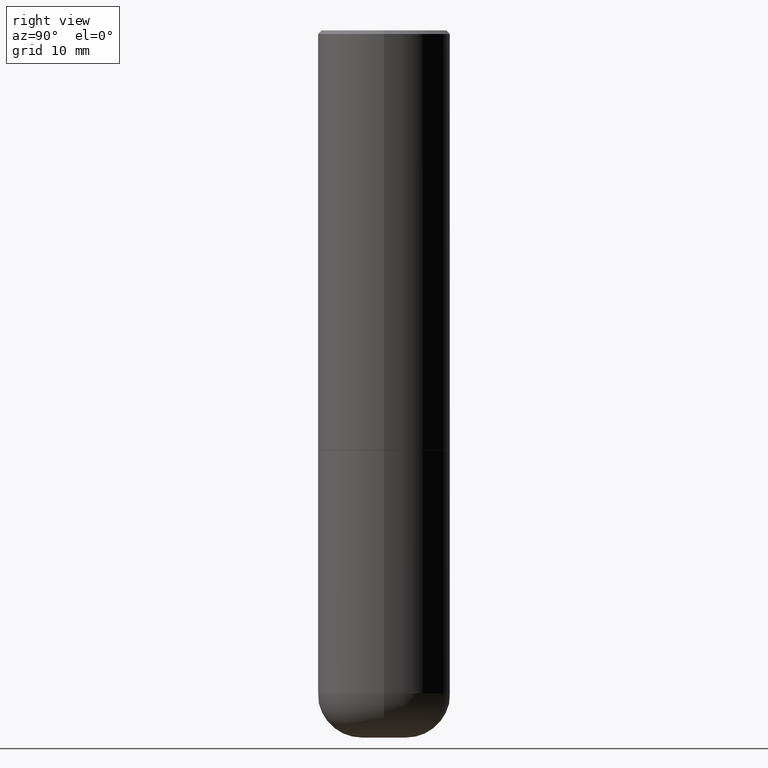
[diagram: clean part render]
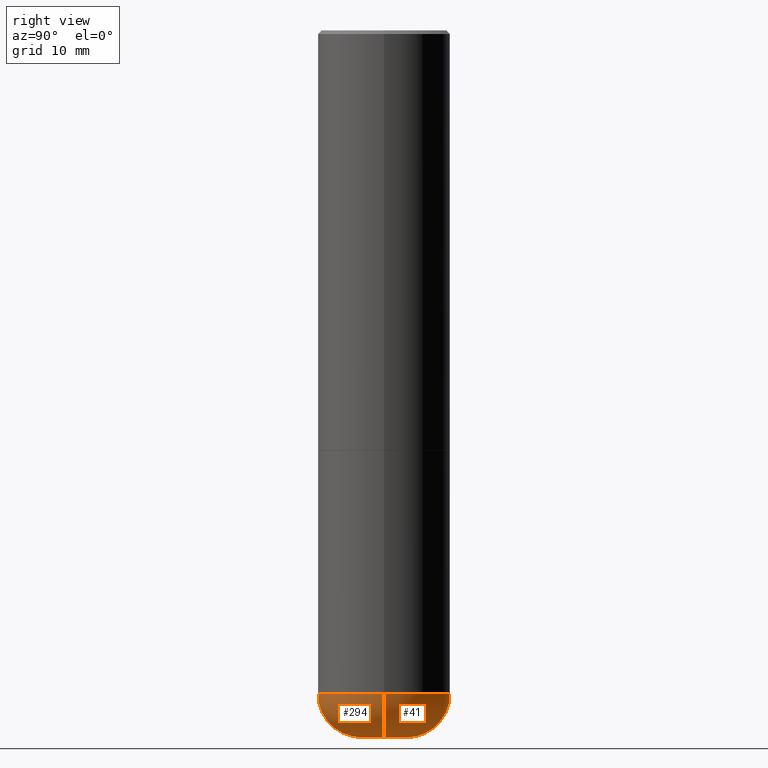
[diagram: same view with one multi-face feature highlighted, each face labeled with its STEP entity id]
A machine part, right view. The highlighted faces form ONE feature: a constant-radius fillet chain: 2 tangent blend faces with common blend radius 6.35 mm. The faces share edges in the B-rep.
Their STEP definitions:
[1] entity #294 (Torus):
#40 = VERTEX_POINT ( 'NONE', #445 ) ;
#42 = DIRECTION ( 'NONE',  ( -2.445468806185136597E-29, 3.491481338843145583E-15, 1.000000000000000000 ) ) ;
#45 = AXIS2_PLACEMENT_3D ( 'NONE', #474, #42, #195 ) ;
#53 = TOROIDAL_SURFACE ( 'NONE', #300, 0.1250000000000003053, 0.2500000000000001110 ) ;
#61 = DIRECTION ( 'NONE',  ( -1.000000000000000000, 7.105427357601001859E-15, 0.000000000000000000 ) ) ;
#95 = CARTESIAN_POINT ( 'NONE',  ( 0.1250000000000003053, -1.396595859160030030E-14, -3.750009519233956645 ) ) ;
#99 = FACE_OUTER_BOUND ( 'NONE', #429, .T. ) ;
#118 = ORIENTED_EDGE ( 'NONE', *, *, #302, .F. ) ;
#132 = CARTESIAN_POINT ( 'NONE',  ( 0.3749999999999999445, -1.571169926102186224E-14, -3.750009519233956645 ) ) ;
#141 = ORIENTED_EDGE ( 'NONE', *, *, #179, .T. ) ;
#174 = DIRECTION ( 'NONE',  ( 7.105427357601001859E-15, 1.000000000000000000, -3.491481338843145583E-15 ) ) ;
#179 = EDGE_CURVE ( 'NONE', #262, #309, #307, .T. ) ;
#195 = DIRECTION ( 'NONE',  ( 1.000000000000000000, -6.982962677686263555E-15, 0.000000000000000000 ) ) ;
#198 = CIRCLE ( 'NONE', #444, 0.2500000000000000555 ) ;
#208 = EDGE_CURVE ( 'NONE', #309, #375, #198, .T. ) ;
#216 = CARTESIAN_POINT ( 'NONE',  ( 9.781875224740545266E-29, -1.396592535537258075E-14, -3.999999999999999556 ) ) ;
#243 = DIRECTION ( 'NONE',  ( -2.445468806185136597E-29, 3.491481338843145583E-15, 1.000000000000000000 ) ) ;
#262 = VERTEX_POINT ( 'NONE', #280 ) ;
#265 = CIRCLE ( 'NONE', #45, 0.3749999999999999445 ) ;
#280 = CARTESIAN_POINT ( 'NONE',  ( -0.1228183661254082099, -1.176090068723919405E-14, -3.999999999999999556 ) ) ;
#290 = AXIS2_PLACEMENT_3D ( 'NONE', #216, #336, #488 ) ;
#294 = ADVANCED_FACE ( 'NONE', ( #99 ), #53, .T. ) ;
#300 = AXIS2_PLACEMENT_3D ( 'NONE', #325, #243, #391 ) ;
#302 = EDGE_CURVE ( 'NONE', #262, #40, #407, .T. ) ;
#307 = CIRCLE ( 'NONE', #290, 0.1228183661254082099 ) ;
#309 = VERTEX_POINT ( 'NONE', #396 ) ;
#324 = CARTESIAN_POINT ( 'NONE',  ( -0.1250000000000003053, -1.220490983718938699E-14, -3.750009519233956645 ) ) ;
#325 = CARTESIAN_POINT ( 'NONE',  ( 9.170531302183962062E-29, -1.309308825688951538E-14, -3.750009519233956645 ) ) ;
#336 = DIRECTION ( 'NONE',  ( -2.445468806185136597E-29, 3.491481338843145583E-15, 1.000000000000000000 ) ) ;
#357 = DIRECTION ( 'NONE',  ( 1.000000000000000000, -6.982962677686269077E-15, 0.000000000000000000 ) ) ;
#375 = VERTEX_POINT ( 'NONE', #132 ) ;
#382 = ORIENTED_EDGE ( 'NONE', *, *, #448, .F. ) ;
#391 = DIRECTION ( 'NONE',  ( 1.000000000000000000, -6.982962677686266711E-15, 4.883557194083113462E-29 ) ) ;
#396 = CARTESIAN_POINT ( 'NONE',  ( 0.1228183661254082099, -1.482356142216071167E-14, -3.999999999999999556 ) ) ;
#399 = DIRECTION ( 'NONE',  ( -6.982962677686266711E-15, -1.000000000000000000, 3.491481338843145583E-15 ) ) ;
#407 = CIRCLE ( 'NONE', #434, 0.2500000000000000555 ) ;
#429 = EDGE_LOOP ( 'NONE', ( #118, #141, #453, #382 ) ) ;
#434 = AXIS2_PLACEMENT_3D ( 'NONE', #324, #174, #61 ) ;
#444 = AXIS2_PLACEMENT_3D ( 'NONE', #95, #399, #357 ) ;
#445 = CARTESIAN_POINT ( 'NONE',  ( -0.3749999999999999445, -8.028142959220617840E-15, -3.750009519233956645 ) ) ;
#448 = EDGE_CURVE ( 'NONE', #40, #375, #265, .T. ) ;
#453 = ORIENTED_EDGE ( 'NONE', *, *, #208, .T. ) ;
#474 = CARTESIAN_POINT ( 'NONE',  ( 9.170531302183962062E-29, -1.309308825688951538E-14, -3.750009519233956645 ) ) ;
#488 = DIRECTION ( 'NONE',  ( 1.000000000000000000, -6.982962677686260400E-15, 0.000000000000000000 ) ) ;
[2] entity #41 (Torus):
#34 = CARTESIAN_POINT ( 'NONE',  ( 9.781875224740545266E-29, -1.396592535537258075E-14, -3.999999999999999556 ) ) ;
#40 = VERTEX_POINT ( 'NONE', #445 ) ;
#41 = ADVANCED_FACE ( 'NONE', ( #373 ), #274, .T. ) ;
#61 = DIRECTION ( 'NONE',  ( -1.000000000000000000, 7.105427357601001859E-15, 0.000000000000000000 ) ) ;
#67 = CARTESIAN_POINT ( 'NONE',  ( 9.170531302183962062E-29, -1.309308825688951538E-14, -3.750009519233956645 ) ) ;
#76 = EDGE_CURVE ( 'NONE', #309, #262, #468, .T. ) ;
#95 = CARTESIAN_POINT ( 'NONE',  ( 0.1250000000000003053, -1.396595859160030030E-14, -3.750009519233956645 ) ) ;
#109 = ORIENTED_EDGE ( 'NONE', *, *, #268, .F. ) ;
#110 = DIRECTION ( 'NONE',  ( -2.445468806185136597E-29, 3.491481338843145583E-15, 1.000000000000000000 ) ) ;
#132 = CARTESIAN_POINT ( 'NONE',  ( 0.3749999999999999445, -1.571169926102186224E-14, -3.750009519233956645 ) ) ;
#134 = CARTESIAN_POINT ( 'NONE',  ( 9.170531302183962062E-29, -1.309308825688951538E-14, -3.750009519233956645 ) ) ;
#142 = DIRECTION ( 'NONE',  ( -2.445468806185136597E-29, 3.491481338843145583E-15, 1.000000000000000000 ) ) ;
#151 = AXIS2_PLACEMENT_3D ( 'NONE', #134, #245, #430 ) ;
#152 = ORIENTED_EDGE ( 'NONE', *, *, #76, .T. ) ;
#161 = CIRCLE ( 'NONE', #151, 0.3749999999999999445 ) ;
#174 = DIRECTION ( 'NONE',  ( 7.105427357601001859E-15, 1.000000000000000000, -3.491481338843145583E-15 ) ) ;
#198 = CIRCLE ( 'NONE', #444, 0.2500000000000000555 ) ;
#208 = EDGE_CURVE ( 'NONE', #309, #375, #198, .T. ) ;
#232 = AXIS2_PLACEMENT_3D ( 'NONE', #34, #110, #371 ) ;
#245 = DIRECTION ( 'NONE',  ( -2.445468806185136597E-29, 3.491481338843145583E-15, 1.000000000000000000 ) ) ;
#259 = EDGE_LOOP ( 'NONE', ( #152, #379, #109, #298 ) ) ;
#262 = VERTEX_POINT ( 'NONE', #280 ) ;
#268 = EDGE_CURVE ( 'NONE', #375, #40, #161, .T. ) ;
#274 = TOROIDAL_SURFACE ( 'NONE', #478, 0.1250000000000003053, 0.2500000000000001110 ) ;
#280 = CARTESIAN_POINT ( 'NONE',  ( -0.1228183661254082099, -1.176090068723919405E-14, -3.999999999999999556 ) ) ;
#298 = ORIENTED_EDGE ( 'NONE', *, *, #208, .F. ) ;
#302 = EDGE_CURVE ( 'NONE', #262, #40, #407, .T. ) ;
#309 = VERTEX_POINT ( 'NONE', #396 ) ;
#324 = CARTESIAN_POINT ( 'NONE',  ( -0.1250000000000003053, -1.220490983718938699E-14, -3.750009519233956645 ) ) ;
#357 = DIRECTION ( 'NONE',  ( 1.000000000000000000, -6.982962677686269077E-15, 0.000000000000000000 ) ) ;
#368 = DIRECTION ( 'NONE',  ( 1.000000000000000000, -6.982962677686266711E-15, 4.883557194083113462E-29 ) ) ;
#371 = DIRECTION ( 'NONE',  ( 1.000000000000000000, -6.982962677686260400E-15, 0.000000000000000000 ) ) ;
#373 = FACE_OUTER_BOUND ( 'NONE', #259, .T. ) ;
#375 = VERTEX_POINT ( 'NONE', #132 ) ;
#379 = ORIENTED_EDGE ( 'NONE', *, *, #302, .T. ) ;
#396 = CARTESIAN_POINT ( 'NONE',  ( 0.1228183661254082099, -1.482356142216071167E-14, -3.999999999999999556 ) ) ;
#399 = DIRECTION ( 'NONE',  ( -6.982962677686266711E-15, -1.000000000000000000, 3.491481338843145583E-15 ) ) ;
#407 = CIRCLE ( 'NONE', #434, 0.2500000000000000555 ) ;
#430 = DIRECTION ( 'NONE',  ( 1.000000000000000000, -6.982962677686263555E-15, 0.000000000000000000 ) ) ;
#434 = AXIS2_PLACEMENT_3D ( 'NONE', #324, #174, #61 ) ;
#444 = AXIS2_PLACEMENT_3D ( 'NONE', #95, #399, #357 ) ;
#445 = CARTESIAN_POINT ( 'NONE',  ( -0.3749999999999999445, -8.028142959220617840E-15, -3.750009519233956645 ) ) ;
#468 = CIRCLE ( 'NONE', #232, 0.1228183661254082099 ) ;
#478 = AXIS2_PLACEMENT_3D ( 'NONE', #67, #142, #368 ) ;